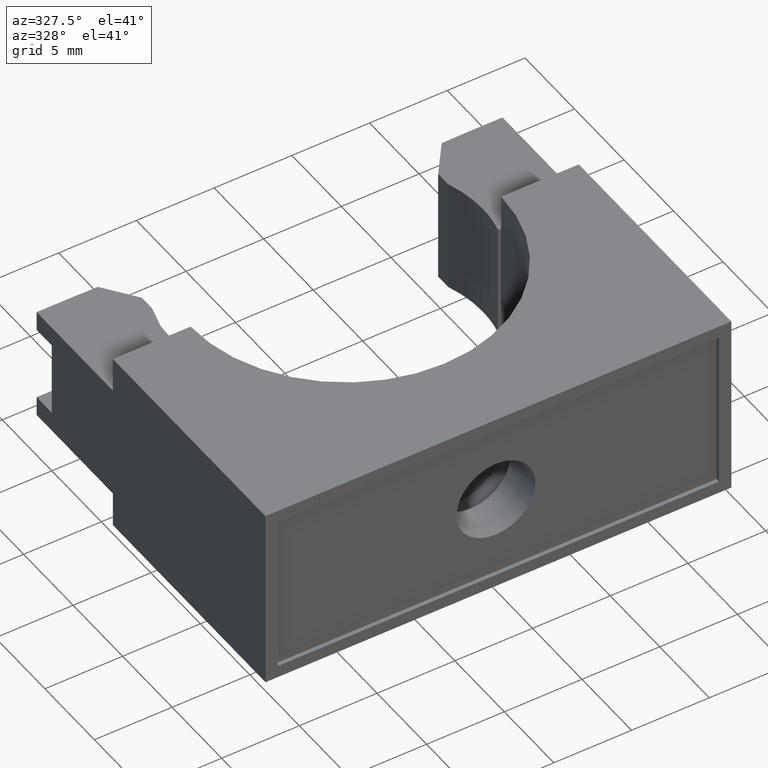
[diagram: clean part render]
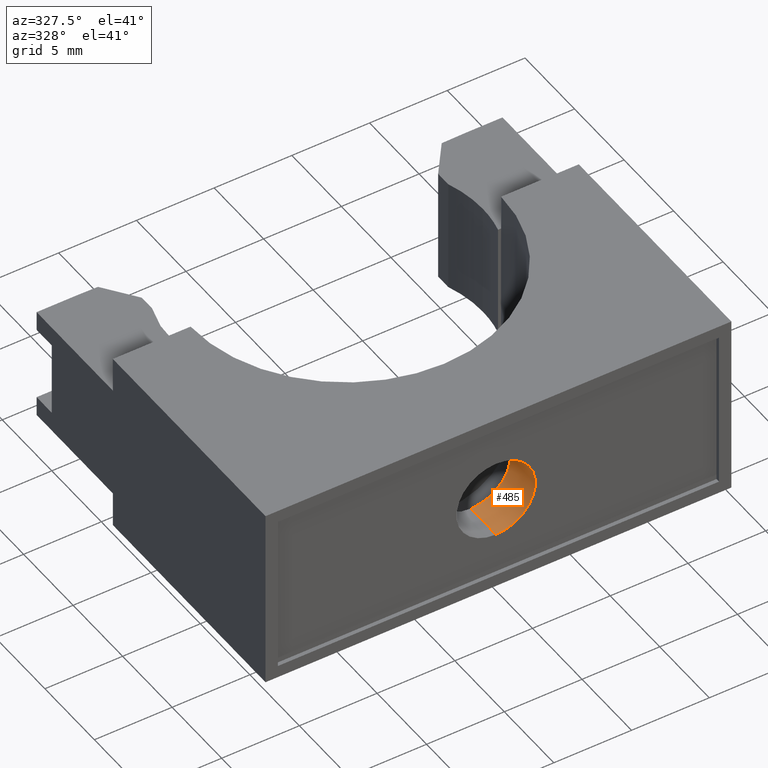
[diagram: same view with one face highlighted and labeled with its STEP entity id]
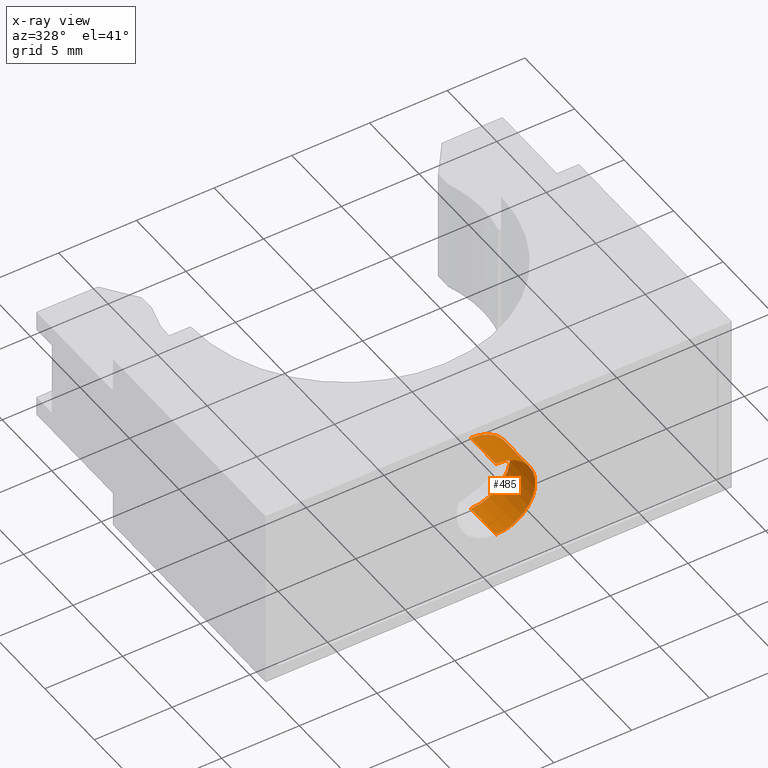
[diagram: x-ray of the same camera — body ghosted, the highlighted face saturated]
A machine part, auxiliary view. The second image highlights one B-rep face of the part: STEP entity #485.
The next image is the same camera in x-ray: the body ghosted, the highlighted face saturated — about 0% of this face is hidden behind the body in this view.
In plain terms, the highlighted cylindrical surface (partial cylindrical patch) has radius 2.54 mm, axis along (-0, 1, 0).
Its self-contained STEP definition (entity closure, byte-faithful):
#35 = VERTEX_POINT ( 'NONE', #1701 ) ;
#44 = EDGE_CURVE ( 'NONE', #86, #35, #1624, .T. ) ;
#63 = EDGE_CURVE ( 'NONE', #85, #64, #1656, .T. ) ;
#64 = VERTEX_POINT ( 'NONE', #1648 ) ;
#85 = VERTEX_POINT ( 'NONE', #661 ) ;
#86 = VERTEX_POINT ( 'NONE', #683 ) ;
#123 = EDGE_CURVE ( 'NONE', #86, #85, #720, .T. ) ;
#467 = EDGE_LOOP ( 'NONE', ( #468, #469, #470, #471 ) ) ;
#468 = ORIENTED_EDGE ( 'NONE', *, *, #63, .F. ) ;
#469 = ORIENTED_EDGE ( 'NONE', *, *, #123, .F. ) ;
#470 = ORIENTED_EDGE ( 'NONE', *, *, #44, .T. ) ;
#471 = ORIENTED_EDGE ( 'NONE', *, *, #527, .T. ) ;
#485 = ADVANCED_FACE ( 'NONE', ( #1342 ), #1463, .F. ) ;
#527 = EDGE_CURVE ( 'NONE', #35, #64, #1468, .T. ) ;
#661 = CARTESIAN_POINT ( 'NONE',  ( 1.224646799147353700E-017, -0.4449999999999995100, 0.1349999999999999300 ) ) ;
#683 = CARTESIAN_POINT ( 'NONE',  ( 0.0000000000000000000, -0.4449999999999995100, 0.3349999999999999600 ) ) ;
#718 = CARTESIAN_POINT ( 'NONE',  ( 0.0000000000000000000, -0.4449999999999995100, 0.2349999999999999600 ) ) ;
#719 = AXIS2_PLACEMENT_3D ( 'NONE', #718, #743, #742 ) ;
#720 = CIRCLE ( 'NONE', #719, 0.1000000000000000200 ) ;
#742 = DIRECTION ( 'NONE',  ( 0.0000000000000000000, 0.0000000000000000000, 1.000000000000000000 ) ) ;
#743 = DIRECTION ( 'NONE',  ( -0.0000000000000000000, 1.000000000000000000, 7.639631403992348300E-017 ) ) ;
#1342 = FACE_OUTER_BOUND ( 'NONE', #467, .T. ) ;
#1457 = CARTESIAN_POINT ( 'NONE',  ( 0.0000000000000000000, 8.818465364163486600E-018, 0.2349999999999999900 ) ) ;
#1460 = DIRECTION ( 'NONE',  ( 0.0000000000000000000, -7.639631403992347100E-017, 1.000000000000000000 ) ) ;
#1461 = DIRECTION ( 'NONE',  ( -0.0000000000000000000, 1.000000000000000000, 7.639631403992348300E-017 ) ) ;
#1462 = AXIS2_PLACEMENT_3D ( 'NONE', #1457, #1461, #1460 ) ;
#1463 = CYLINDRICAL_SURFACE ( 'NONE', #1462, 0.1000000000000000600 ) ;
#1464 = DIRECTION ( 'NONE',  ( 0.0000000000000000000, 0.0000000000000000000, 1.000000000000000000 ) ) ;
#1465 = DIRECTION ( 'NONE',  ( -0.0000000000000000000, 1.000000000000000000, 7.639631403992348300E-017 ) ) ;
#1466 = CARTESIAN_POINT ( 'NONE',  ( 0.0000000000000000000, -0.3449999999999994700, 0.2349999999999999600 ) ) ;
#1467 = AXIS2_PLACEMENT_3D ( 'NONE', #1466, #1465, #1464 ) ;
#1468 = CIRCLE ( 'NONE', #1467, 0.1000000000000000200 ) ;
#1621 = DIRECTION ( 'NONE',  ( -0.0000000000000000000, 1.000000000000000000, 7.639631403992348300E-017 ) ) ;
#1622 = VECTOR ( 'NONE', #1621, 39.37007874015748100 ) ;
#1623 = CARTESIAN_POINT ( 'NONE',  ( 0.0000000000000000000, 1.178833960171134700E-018, 0.3350000000000000200 ) ) ;
#1624 = LINE ( 'NONE', #1623, #1622 ) ;
#1648 = CARTESIAN_POINT ( 'NONE',  ( 1.224646799147353900E-017, -0.3449999999999994700, 0.1349999999999999000 ) ) ;
#1649 = DIRECTION ( 'NONE',  ( -0.0000000000000000000, 1.000000000000000000, 7.639631403992348300E-017 ) ) ;
#1650 = VECTOR ( 'NONE', #1649, 39.37007874015748100 ) ;
#1651 = CARTESIAN_POINT ( 'NONE',  ( 1.224646799147353700E-017, 1.645809676815583900E-017, 0.1349999999999999500 ) ) ;
#1656 = LINE ( 'NONE', #1651, #1650 ) ;
#1701 = CARTESIAN_POINT ( 'NONE',  ( 0.0000000000000000000, -0.3449999999999994700, 0.3349999999999999600 ) ) ;